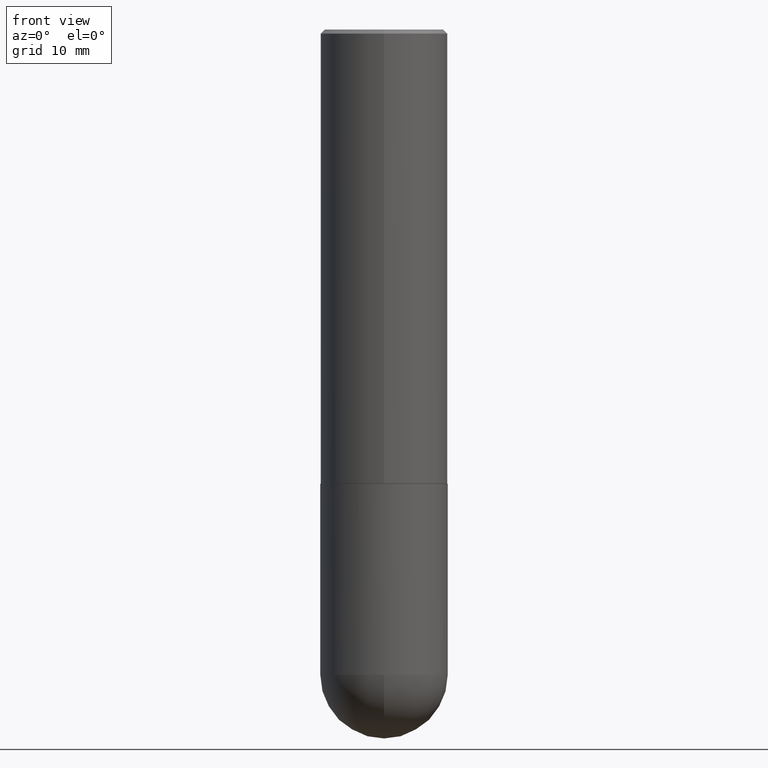
[diagram: clean part render]
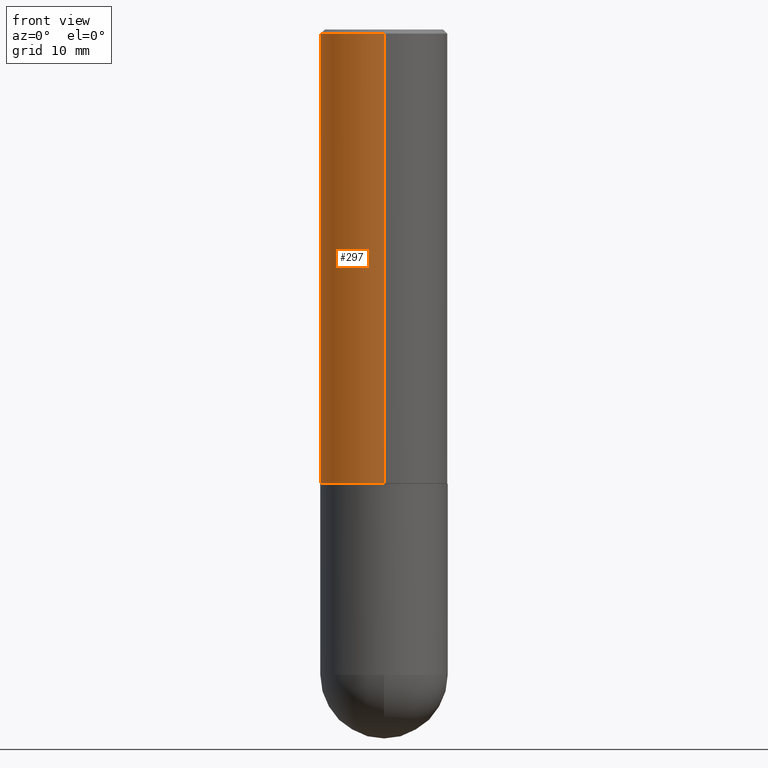
[diagram: same view with one face highlighted and labeled with its STEP entity id]
A machine part, front view. The second image highlights one B-rep face of the part: STEP entity #297.
In plain terms, the highlighted cylindrical surface (partial cylindrical patch) has radius 7.9997 mm, axis along (-0, 0, 1).
Its self-contained STEP definition (entity closure, byte-faithful):
#16 = LINE ( 'NONE', #339, #396 ) ;
#18 = CIRCLE ( 'NONE', #379, 0.3149500000000002853 ) ;
#41 = CYLINDRICAL_SURFACE ( 'NONE', #329, 0.3149500000000001743 ) ;
#43 = EDGE_CURVE ( 'NONE', #157, #73, #16, .T. ) ;
#55 = CARTESIAN_POINT ( 'NONE',  ( 5.485885888258796113E-29, -7.831090478634690748E-15, -2.243099999999999650 ) ) ;
#60 = VECTOR ( 'NONE', #86, 39.37007874015748143 ) ;
#68 = DIRECTION ( 'NONE',  ( -2.445671565359902220E-29, 3.491190976164545714E-15, 1.000000000000000000 ) ) ;
#73 = VERTEX_POINT ( 'NONE', #78 ) ;
#78 = CARTESIAN_POINT ( 'NONE',  ( -2.160713844398143363E-15, -0.3149500000000000632, -0.01999999999999896999 ) ) ;
#86 = DIRECTION ( 'NONE',  ( -2.445671565359902220E-29, 3.491190976164546108E-15, 1.000000000000000000 ) ) ;
#90 = EDGE_CURVE ( 'NONE', #391, #157, #18, .T. ) ;
#99 = VERTEX_POINT ( 'NONE', #258 ) ;
#120 = CARTESIAN_POINT ( 'NONE',  ( 2.237854346276435985E-15, 0.3149500000000001743, -1.099550597943024265E-15 ) ) ;
#124 = EDGE_CURVE ( 'NONE', #391, #99, #314, .T. ) ;
#129 = EDGE_LOOP ( 'NONE', ( #289, #343, #235, #296 ) ) ;
#138 = DIRECTION ( 'NONE',  ( -2.445671565359902220E-29, 3.491190976164546108E-15, 1.000000000000000000 ) ) ;
#149 = CARTESIAN_POINT ( 'NONE',  ( 0.000000000000000000, 0.000000000000000000, 0.000000000000000000 ) ) ;
#150 = DIRECTION ( 'NONE',  ( -2.445671565359902220E-29, 3.491190976164545714E-15, 1.000000000000000000 ) ) ;
#153 = DIRECTION ( 'NONE',  ( -6.982962677686264344E-15, -1.000000000000000000, 3.491190976164545714E-15 ) ) ;
#157 = VERTEX_POINT ( 'NONE', #277 ) ;
#191 = FACE_OUTER_BOUND ( 'NONE', #129, .T. ) ;
#196 = EDGE_CURVE ( 'NONE', #99, #73, #207, .T. ) ;
#207 = CIRCLE ( 'NONE', #338, 0.3149500000000000077 ) ;
#231 = DIRECTION ( 'NONE',  ( -6.982962677686265922E-15, -1.000000000000000000, 3.496670018878889100E-15 ) ) ;
#235 = ORIENTED_EDGE ( 'NONE', *, *, #43, .T. ) ;
#238 = CARTESIAN_POINT ( 'NONE',  ( 2.237854346276464384E-15, 0.3149499999999924027, -2.243100000000000538 ) ) ;
#258 = CARTESIAN_POINT ( 'NONE',  ( 2.199284095337289871E-15, 0.3149499999999999522, -0.02000000000000117309 ) ) ;
#271 = DIRECTION ( 'NONE',  ( -2.445671565359902220E-29, 3.491190976164545714E-15, 1.000000000000000000 ) ) ;
#277 = CARTESIAN_POINT ( 'NONE',  ( -2.199284095337236228E-15, -0.3149500000000081124, -2.243099999999998317 ) ) ;
#289 = ORIENTED_EDGE ( 'NONE', *, *, #124, .F. ) ;
#293 = CARTESIAN_POINT ( 'NONE',  ( 4.891343130719822166E-31, -6.982381952329116622E-17, -0.02000000000000007327 ) ) ;
#296 = ORIENTED_EDGE ( 'NONE', *, *, #196, .F. ) ;
#297 = ADVANCED_FACE ( 'NONE', ( #191 ), #41, .T. ) ;
#304 = DIRECTION ( 'NONE',  ( -6.982962677686265922E-15, -1.000000000000000000, 3.469564049740290009E-15 ) ) ;
#314 = LINE ( 'NONE', #120, #60 ) ;
#329 = AXIS2_PLACEMENT_3D ( 'NONE', #149, #150, #153 ) ;
#338 = AXIS2_PLACEMENT_3D ( 'NONE', #293, #68, #231 ) ;
#339 = CARTESIAN_POINT ( 'NONE',  ( -2.199284095337290265E-15, -0.3149500000000001743, 1.099550597943024265E-15 ) ) ;
#343 = ORIENTED_EDGE ( 'NONE', *, *, #90, .T. ) ;
#379 = AXIS2_PLACEMENT_3D ( 'NONE', #55, #271, #304 ) ;
#391 = VERTEX_POINT ( 'NONE', #238 ) ;
#396 = VECTOR ( 'NONE', #138, 39.37007874015748143 ) ;